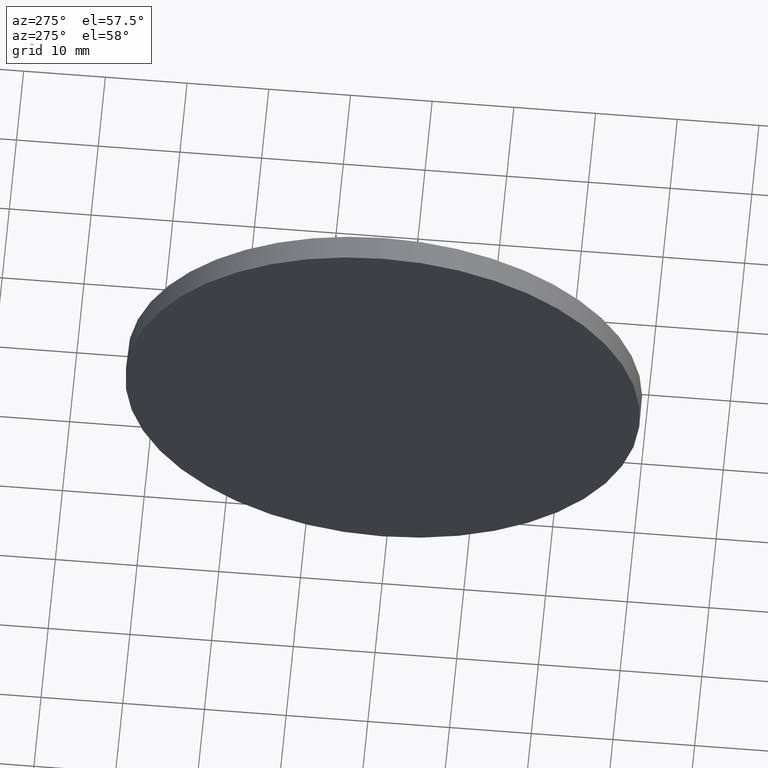
[diagram: clean part render]
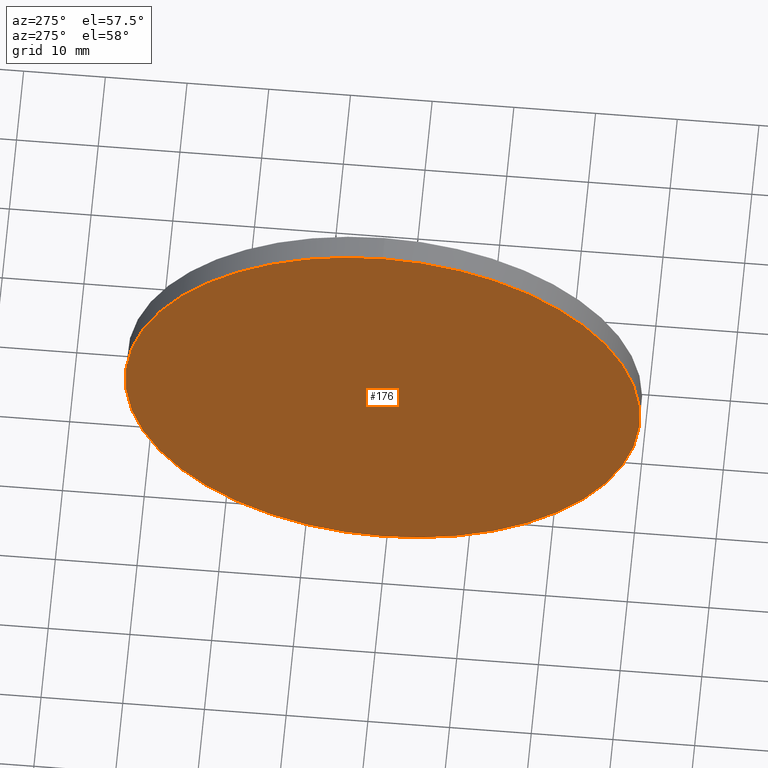
[diagram: same view with one face highlighted and labeled with its STEP entity id]
A machine part, auxiliary view. The second image highlights one B-rep face of the part: STEP entity #176.
In plain terms, the highlighted planar face has unit normal (1, 0, 0).
Its self-contained STEP definition (entity closure, byte-faithful):
#21 = AXIS2_PLACEMENT_3D ( 'NONE', #118, #179, #90 ) ;
#33 = CARTESIAN_POINT ( 'NONE',  ( 225.9653141997173400, 130.4671098528244200, 0.0000000000000000000 ) ) ;
#38 = EDGE_CURVE ( 'NONE', #111, #138, #119, .T. ) ;
#41 = ORIENTED_EDGE ( 'NONE', *, *, #38, .T. ) ;
#46 = PLANE ( 'NONE',  #60 ) ;
#52 = AXIS2_PLACEMENT_3D ( 'NONE', #33, #129, #164 ) ;
#60 = AXIS2_PLACEMENT_3D ( 'NONE', #127, #173, #93 ) ;
#65 = CARTESIAN_POINT ( 'NONE',  ( 225.9653141997173400, 130.4671098528244200, -31.50000000000000000 ) ) ;
#79 = EDGE_LOOP ( 'NONE', ( #41, #85 ) ) ;
#85 = ORIENTED_EDGE ( 'NONE', *, *, #152, .T. ) ;
#90 = DIRECTION ( 'NONE',  ( 0.0000000000000000000, 0.0000000000000000000, 1.000000000000000000 ) ) ;
#93 = DIRECTION ( 'NONE',  ( 0.0000000000000000000, 0.0000000000000000000, -1.000000000000000000 ) ) ;
#105 = FACE_OUTER_BOUND ( 'NONE', #79, .T. ) ;
#111 = VERTEX_POINT ( 'NONE', #180 ) ;
#118 = CARTESIAN_POINT ( 'NONE',  ( 225.9653141997173400, 130.4671098528244200, 0.0000000000000000000 ) ) ;
#119 = CIRCLE ( 'NONE', #52, 31.50000000000000000 ) ;
#127 = CARTESIAN_POINT ( 'NONE',  ( 225.9653141997173400, 130.4671098528244200, 0.0000000000000000000 ) ) ;
#129 = DIRECTION ( 'NONE',  ( -1.000000000000000000, -0.0000000000000000000, -0.0000000000000000000 ) ) ;
#138 = VERTEX_POINT ( 'NONE', #65 ) ;
#140 = CIRCLE ( 'NONE', #21, 31.50000000000000000 ) ;
#152 = EDGE_CURVE ( 'NONE', #138, #111, #140, .T. ) ;
#164 = DIRECTION ( 'NONE',  ( 0.0000000000000000000, 0.0000000000000000000, 1.000000000000000000 ) ) ;
#173 = DIRECTION ( 'NONE',  ( 1.000000000000000000, 0.0000000000000000000, 0.0000000000000000000 ) ) ;
#176 = ADVANCED_FACE ( 'NONE', ( #105 ), #46, .F. ) ;
#179 = DIRECTION ( 'NONE',  ( -1.000000000000000000, -0.0000000000000000000, -0.0000000000000000000 ) ) ;
#180 = CARTESIAN_POINT ( 'NONE',  ( 225.9653141997173400, 130.4671098528244200, 31.50000000000000000 ) ) ;